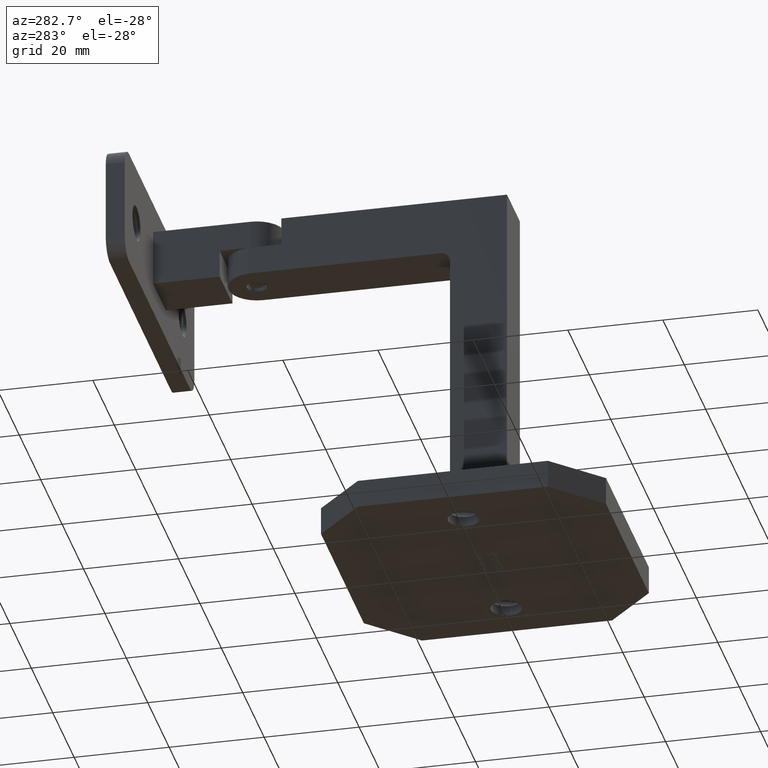
[diagram: clean part render]
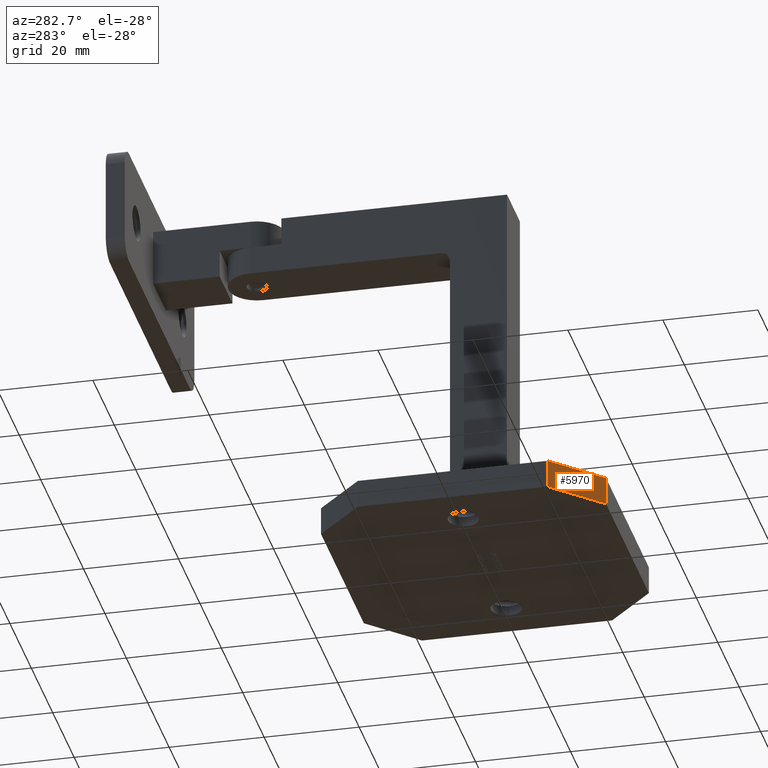
[diagram: same view with one face highlighted and labeled with its STEP entity id]
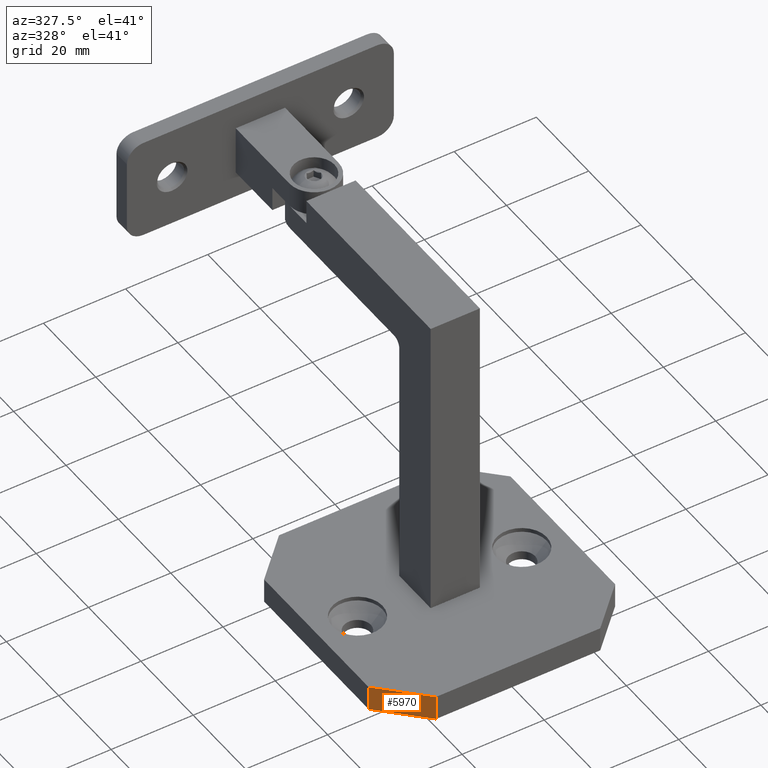
[diagram: same view with one face highlighted and labeled with its STEP entity id]
A machine part, auxiliary view. The second image highlights one B-rep face of the part: STEP entity #5970.
A second angle (auxiliary view) of the same face is appended — the face is thin or edge-on in the first view.
In plain terms, the highlighted planar face has unit normal (0.7071, 0.7071, 0).
Its self-contained STEP definition (entity closure, byte-faithful):
#331 = EDGE_CURVE ( 'NONE', #9592, #14569, #17232, .T. ) ;
#1093 = VERTEX_POINT ( 'NONE', #16507 ) ;
#2513 = VECTOR ( 'NONE', #17087, 1000.000000000000000 ) ;
#2827 = CARTESIAN_POINT ( 'NONE',  ( -30.00000000000000711, -19.99999999999994671, 3.000000000000000000 ) ) ;
#3339 = AXIS2_PLACEMENT_3D ( 'NONE', #8645, #6629, #22027 ) ;
#3418 = CARTESIAN_POINT ( 'NONE',  ( -30.00000000000000711, -19.99999999999995381, 3.000000000000000000 ) ) ;
#3541 = FACE_OUTER_BOUND ( 'NONE', #17020, .T. ) ;
#4608 = DIRECTION ( 'NONE',  ( 0.000000000000000000, 0.000000000000000000, -1.000000000000000000 ) ) ;
#5057 = ORIENTED_EDGE ( 'NONE', *, *, #9114, .F. ) ;
#5970 = ADVANCED_FACE ( 'NONE', ( #3541 ), #12223, .F. ) ;
#6496 = LINE ( 'NONE', #11282, #21485 ) ;
#6629 = DIRECTION ( 'NONE',  ( 0.7071067811865491270, 0.7071067811865459074, 0.000000000000000000 ) ) ;
#7877 = ORIENTED_EDGE ( 'NONE', *, *, #17571, .F. ) ;
#8645 = CARTESIAN_POINT ( 'NONE',  ( -20.00000000000001066, -29.99999999999999645, 3.000000000000000000 ) ) ;
#9114 = EDGE_CURVE ( 'NONE', #14569, #1093, #10846, .T. ) ;
#9592 = VERTEX_POINT ( 'NONE', #2827 ) ;
#10846 = LINE ( 'NONE', #13852, #12655 ) ;
#11282 = CARTESIAN_POINT ( 'NONE',  ( -20.00000000000001066, -29.99999999999999645, -3.000000000000000000 ) ) ;
#12223 = PLANE ( 'NONE',  #3339 ) ;
#12446 = EDGE_CURVE ( 'NONE', #17914, #9592, #17105, .T. ) ;
#12655 = VECTOR ( 'NONE', #4608, 1000.000000000000000 ) ;
#13852 = CARTESIAN_POINT ( 'NONE',  ( -20.00000000000001066, -29.99999999999999645, 3.000000000000000000 ) ) ;
#14569 = VERTEX_POINT ( 'NONE', #17420 ) ;
#16507 = CARTESIAN_POINT ( 'NONE',  ( -20.00000000000001066, -29.99999999999999645, -3.000000000000000000 ) ) ;
#17020 = EDGE_LOOP ( 'NONE', ( #24792, #24790, #7877, #5057 ) ) ;
#17036 = CARTESIAN_POINT ( 'NONE',  ( -30.00000000000000711, -19.99999999999995381, -3.000000000000000000 ) ) ;
#17087 = DIRECTION ( 'NONE',  ( 0.7071067811865459074, -0.7071067811865491270, 0.000000000000000000 ) ) ;
#17105 = LINE ( 'NONE', #3418, #23967 ) ;
#17232 = LINE ( 'NONE', #24756, #2513 ) ;
#17420 = CARTESIAN_POINT ( 'NONE',  ( -20.00000000000000355, -30.00000000000000000, 3.000000000000000000 ) ) ;
#17571 = EDGE_CURVE ( 'NONE', #1093, #17914, #6496, .T. ) ;
#17914 = VERTEX_POINT ( 'NONE', #17036 ) ;
#20437 = DIRECTION ( 'NONE',  ( 0.000000000000000000, 0.000000000000000000, 1.000000000000000000 ) ) ;
#21485 = VECTOR ( 'NONE', #23122, 1000.000000000000000 ) ;
#22027 = DIRECTION ( 'NONE',  ( -0.000000000000000000, 0.000000000000000000, -1.000000000000000000 ) ) ;
#23122 = DIRECTION ( 'NONE',  ( -0.7071067811865459074, 0.7071067811865491270, -0.000000000000000000 ) ) ;
#23967 = VECTOR ( 'NONE', #20437, 1000.000000000000000 ) ;
#24756 = CARTESIAN_POINT ( 'NONE',  ( -25.00000000000004619, -24.99999999999993250, 3.000000000000000000 ) ) ;
#24790 = ORIENTED_EDGE ( 'NONE', *, *, #12446, .F. ) ;
#24792 = ORIENTED_EDGE ( 'NONE', *, *, #331, .F. ) ;